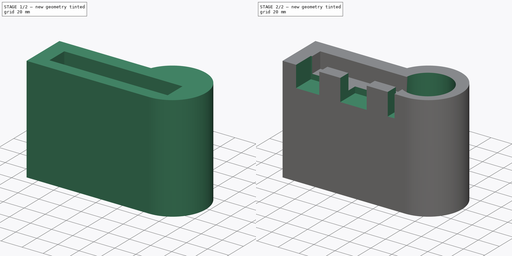
[diagram: build sequence overview — one tinted view per stage of 2, left to right]
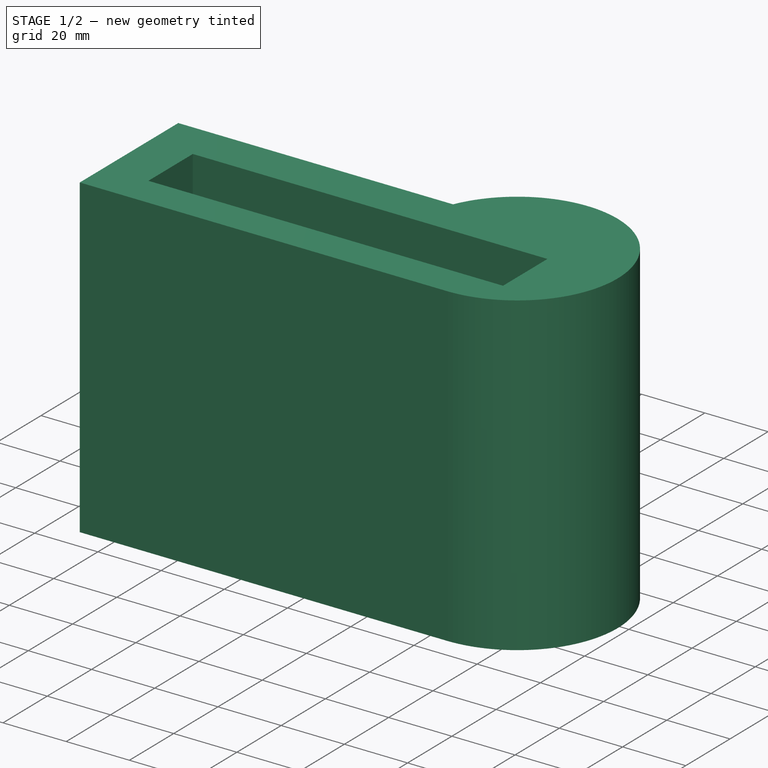
[diagram: stage 1 of 2 — iso view after this stage's code; geometry added in this stage tinted green]
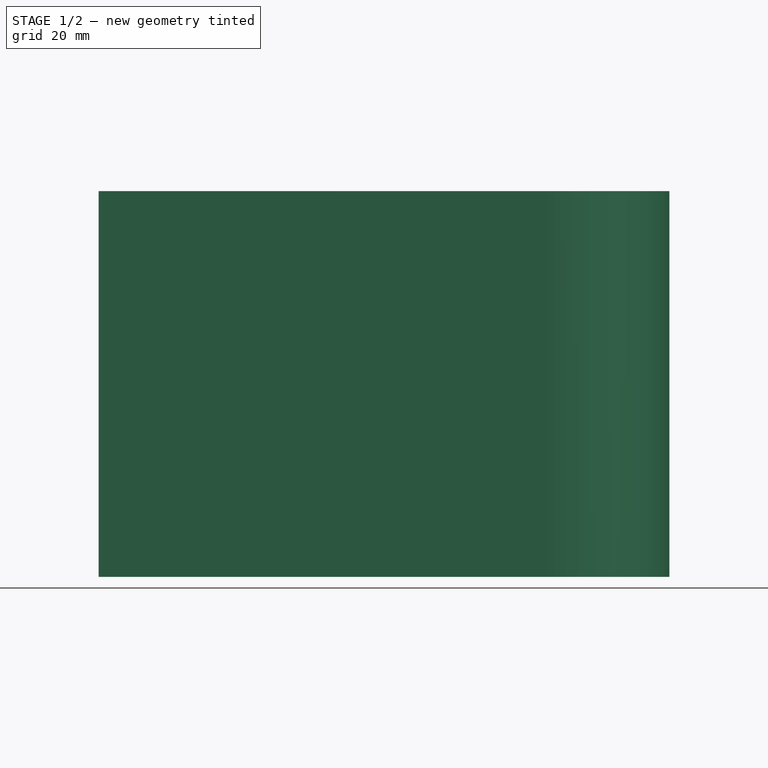
[diagram: stage 1 of 2 — front view after this stage's code; geometry added in this stage tinted green]
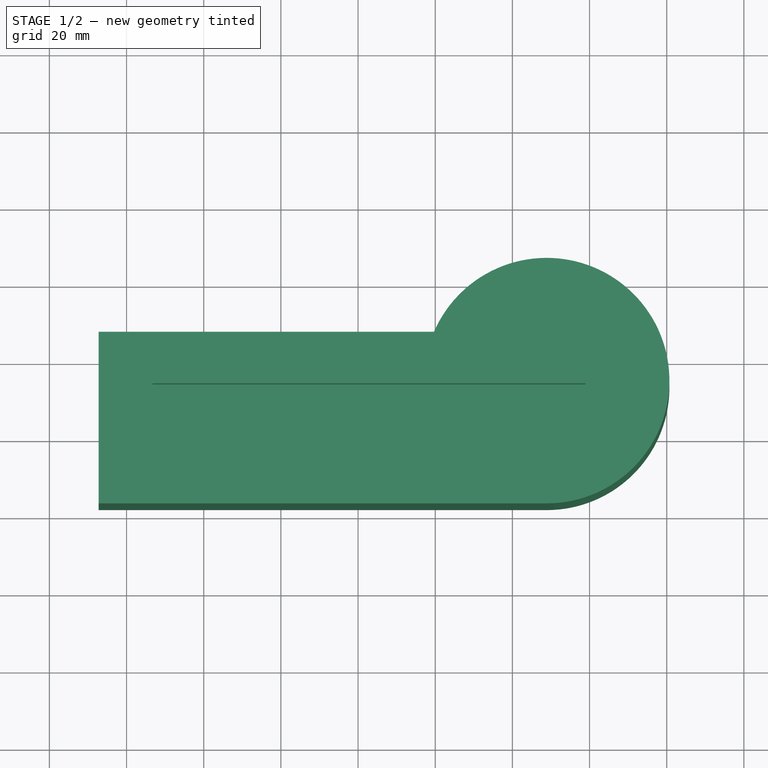
[diagram: stage 1 of 2 — top view after this stage's code; geometry added in this stage tinted green]
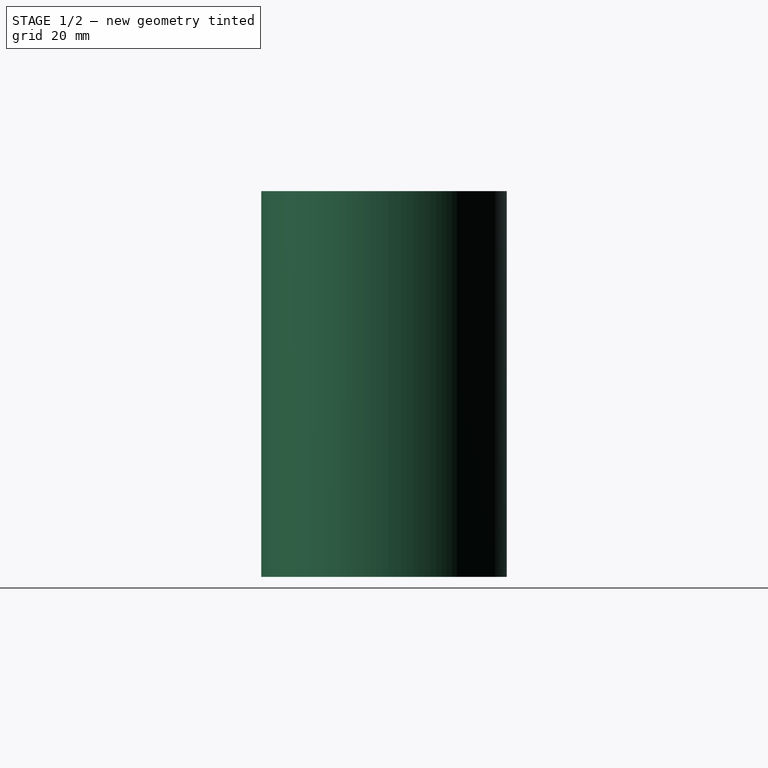
[diagram: stage 1 of 2 — right view after this stage's code; geometry added in this stage tinted green]
FCSTD DOCUMENT  (FreeCAD 0.19R17171 (Git))
Label: PartDesignExample
License: All rights reserved
LicenseURL: http://en.wikipedia.org/wiki/All_rights_reserved
objects: Sketcher::SketchObject×4, PartDesign::Pocket×3, PartDesign::Pad×1, PartDesign::Body×1
note: 13 computed .brp shape members not serialized (recipe doc carries the construction recipe); baked Part::Feature solids carry a one-line shape summary decoded from their .brp

FEATURE [Sketcher::SketchObject] Sketch
  MapMode = 5
  sketch-geometry (4):
    g0: LineSegment StartX=19.6877 StartY=26.6905 StartZ=0 EndX=-67.2479 EndY=26.6905 EndZ=0
    g1: LineSegment StartX=-67.2479 StartY=26.6905 StartZ=0 EndX=-67.2479 EndY=-17.8141 EndZ=0
    g2: LineSegment StartX=-67.2479 StartY=-17.8141 StartZ=0 EndX=49.1537 EndY=-17.8141 EndZ=0
    g3: ArcOfCircle CenterX=48.8715 CenterY=14.0058 CenterZ=0 NormalX=0 NormalY=0 NormalZ=1 AngleXU=0 Radius=31.8212 StartAngle=4.72126 EndAngle=9.01476
  constraints (8):
    c: Horizontal(g0)
    c: Coincident(g0,g1)
    c: Vertical(g1)
    c: Coincident(g1,g2)
    c: Horizontal(g2)
    c: Coincident(g3,g0)
    c: Coincident(g3,g2)
    c: Tangent(g3,g2)
FEATURE [PartDesign::Pad] Pad
  Length = 100
  Length2 = 100
  Profile = -> Sketch
  Refine = true
  Type = 0
FEATURE [Sketcher::SketchObject] Sketch001
  MapMode = 5
  Placement = pos=(0,0,100) rot=(0,0,1;0rad)
  Support = -> [Pad]
  sketch-geometry (4):
    g0: LineSegment StartX=-53.2753 StartY=13.2959 StartZ=0 EndX=58.9324 EndY=13.2959 EndZ=0
    g1: LineSegment StartX=58.9324 StartY=13.2959 StartZ=0 EndX=58.9324 EndY=-6.77268 EndZ=0
    g2: LineSegment StartX=58.9324 StartY=-6.77269 StartZ=0 EndX=-53.2753 EndY=-6.77269 EndZ=0
    g3: LineSegment StartX=-53.2753 StartY=-6.77269 StartZ=0 EndX=-53.2753 EndY=13.2959 EndZ=0
  constraints (8):
    c: Coincident(g0,g1)
    c: Coincident(g1,g2)
    c: Coincident(g2,g3)
    c: Coincident(g3,g0)
    c: Horizontal(g0)
    c: Horizontal(g2)
    c: Vertical(g1)
    c: Vertical(g3)
FEATURE [PartDesign::Pocket] Pocket
  Length = 15
  Length2 = 100
  Profile = -> Sketch001
  Refine = true
  Type = 0
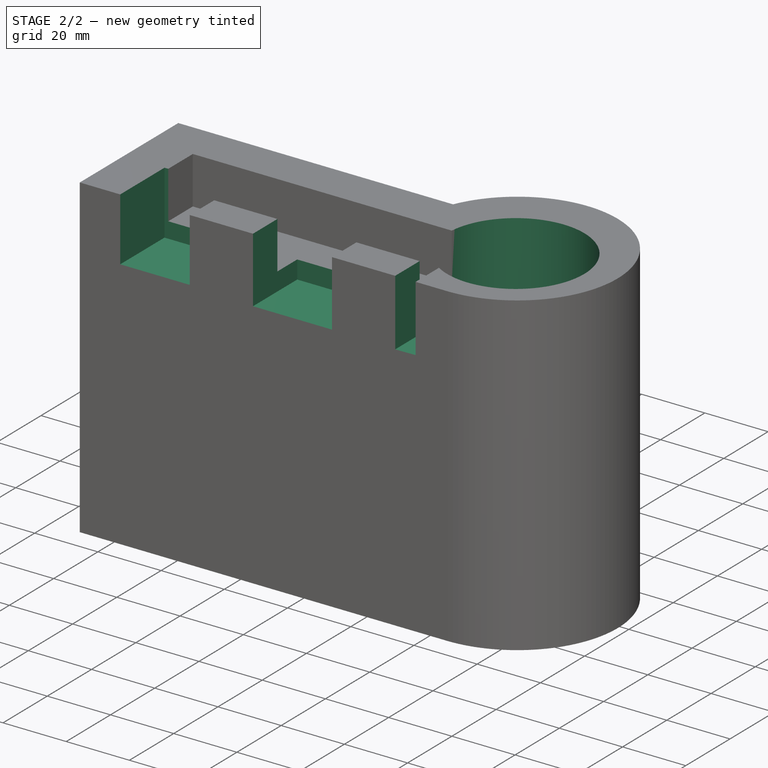
[diagram: stage 2 of 2 — iso view after this stage's code; geometry added in this stage tinted green]
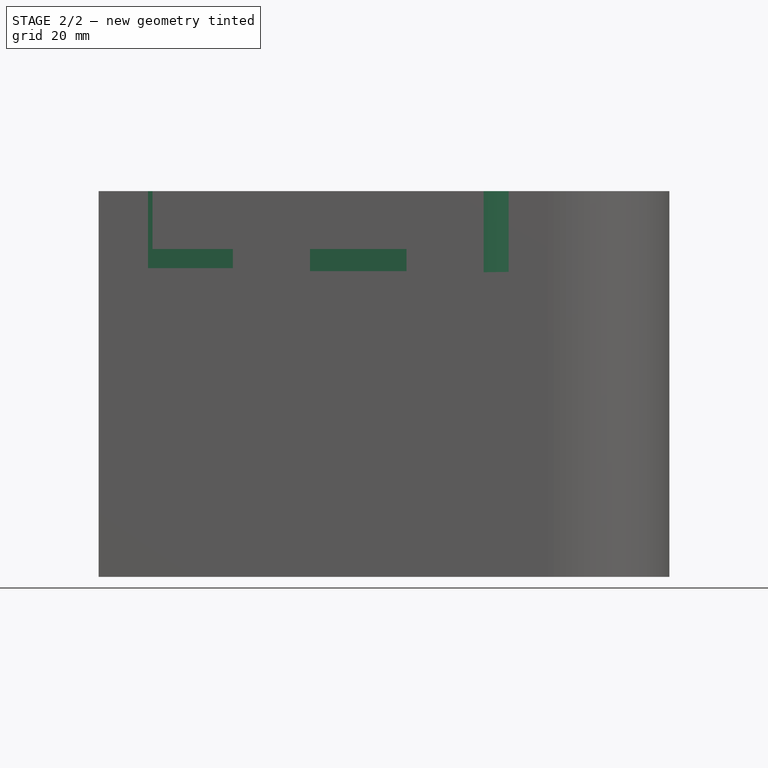
[diagram: stage 2 of 2 — front view after this stage's code; geometry added in this stage tinted green]
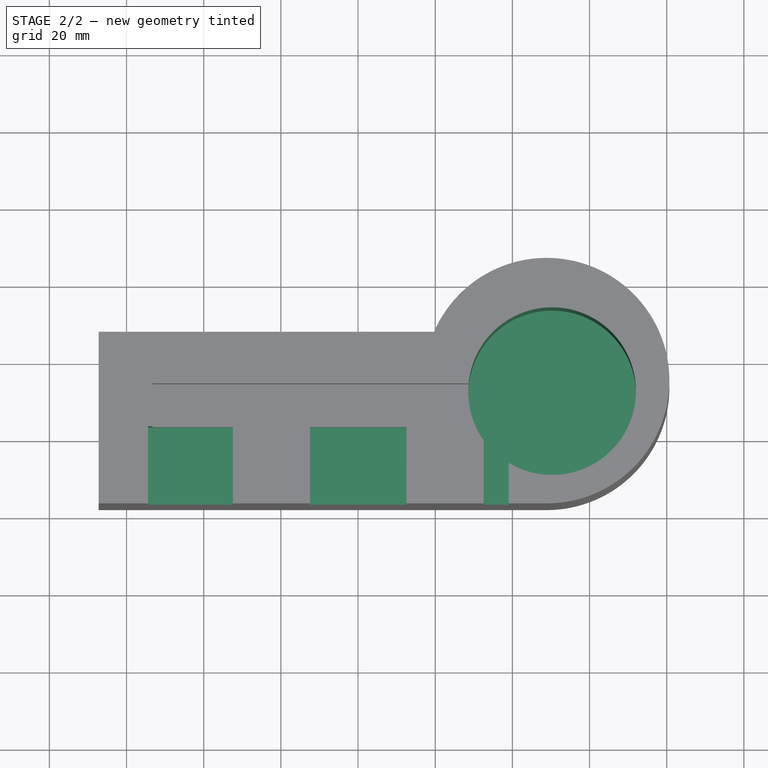
[diagram: stage 2 of 2 — top view after this stage's code; geometry added in this stage tinted green]
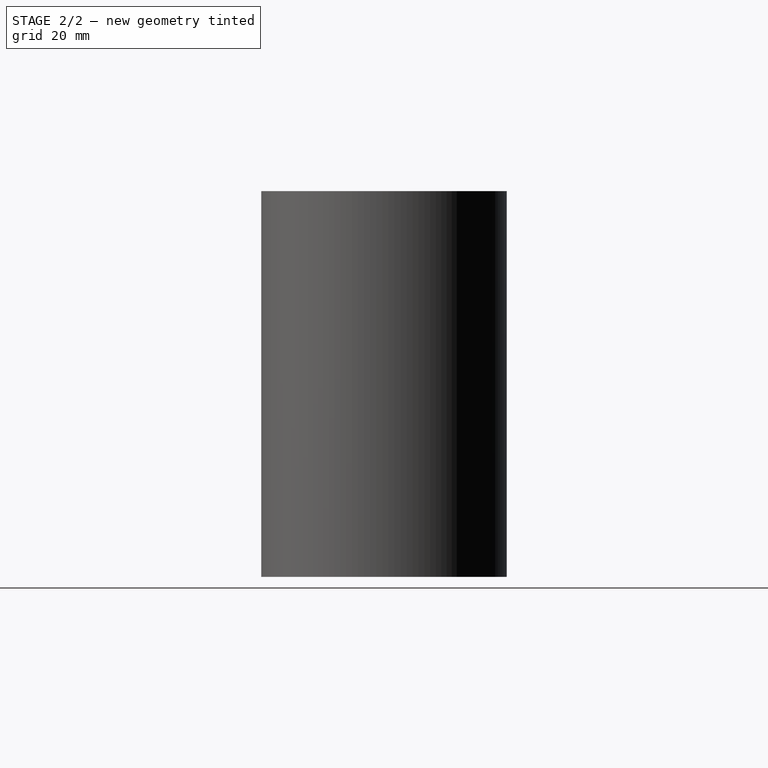
[diagram: stage 2 of 2 — right view after this stage's code; geometry added in this stage tinted green]
FEATURE [Sketcher::SketchObject] Sketch002
  MapMode = 5
  Placement = pos=(2.1291e-12,-17.8141,0) rot=(1,0,0;1.5708rad)
  Support = -> [Pocket]
  sketch-geometry (13):
    g0: LineSegment StartX=-54.4567 StartY=105.889 StartZ=0 EndX=-54.4567 EndY=80.0188 EndZ=0
    g1: LineSegment StartX=-54.4567 StartY=80.0188 StartZ=0 EndX=-32.4567 EndY=80.0188 EndZ=0
    g2: LineSegment StartX=-32.4567 StartY=80.0188 StartZ=0 EndX=-32.4567 EndY=107.255 EndZ=0
    g3: LineSegment StartX=-32.4567 StartY=107.255 StartZ=0 EndX=-12.4567 EndY=107.255 EndZ=0
    g4: LineSegment StartX=-12.4567 StartY=107.255 StartZ=0 EndX=-12.4567 EndY=79.2624 EndZ=0
    g5: LineSegment StartX=-12.4567 StartY=79.2624 StartZ=0 EndX=12.5433 EndY=79.2624 EndZ=0
    g6: LineSegment StartX=12.5433 StartY=79.2624 StartZ=0 EndX=12.5433 EndY=107.865 EndZ=0
    g7: LineSegment StartX=12.5433 StartY=107.865 StartZ=0 EndX=32.5433 EndY=107.865 EndZ=0
    g8: LineSegment StartX=32.5433 StartY=107.865 StartZ=0 EndX=32.5433 EndY=78.9681 EndZ=0
    g9: LineSegment StartX=32.5433 StartY=78.9681 StartZ=0 EndX=39.0065 EndY=79.0528 EndZ=0
    g10: LineSegment StartX=39.0065 StartY=79.0528 StartZ=0 EndX=39.0065 EndY=126.156 EndZ=0
    g11: LineSegment StartX=39.0065 StartY=126.156 StartZ=0 EndX=-30.7503 EndY=126.156 EndZ=0
    g12: LineSegment StartX=-30.7503 StartY=126.156 StartZ=0 EndX=-54.4567 EndY=105.889 EndZ=0
  constraints (25):
    c: Vertical(g0)
    c: Coincident(g0,g1)
    c: Horizontal(g1)
    c: Coincident(g1,g2)
    c: Vertical(g2)
    c: Coincident(g2,g3)
    c: Horizontal(g3)
    c: Coincident(g3,g4)
    c: Vertical(g4)
    c: Coincident(g4,g5)
    c: Horizontal(g5)
    c: Coincident(g5,g6)
    c: Vertical(g6)
    c: Coincident(g6,g7)
    c: Horizontal(g7)
    c: Coincident(g7,g8)
    c: Vertical(g8)
    c: Coincident(g8,g9)
    c: Horizontal(g9)
    c: Coincident(g9,g10)
    c: Vertical(g10)
    c: Coincident(g10,g11)
    c: Horizontal(g11)
    c: Coincident(g11,g12)
    c: Coincident(g12,g0)
FEATURE [PartDesign::Pocket] Pocket001
  Length = 20
  Length2 = 100
  Profile = -> Sketch002
  Refine = true
  Type = 0
FEATURE [Sketcher::SketchObject] Sketch003
  MapMode = 5
  Placement = pos=(0,0,100) rot=(0,0,1;0rad)
  Support = -> [Pocket001]
  sketch-geometry (1):
    g0: Circle CenterX=50.2915 CenterY=11.2881 CenterZ=0 NormalX=0 NormalY=0 NormalZ=1 AngleXU=0 Radius=21.7223
FEATURE [PartDesign::Pocket] Pocket002
  Length = 50
  Length2 = 100
  Profile = -> Sketch003
  Refine = true
  Type = 0
FEATURE [PartDesign::Body] Body
  Group = -> [Sketch,Pad,Sketch001,Pocket,Sketch002,Pocket001,Sketch003,Pocket002]
  Origin = -> Origin
  Tip = -> Pocket002
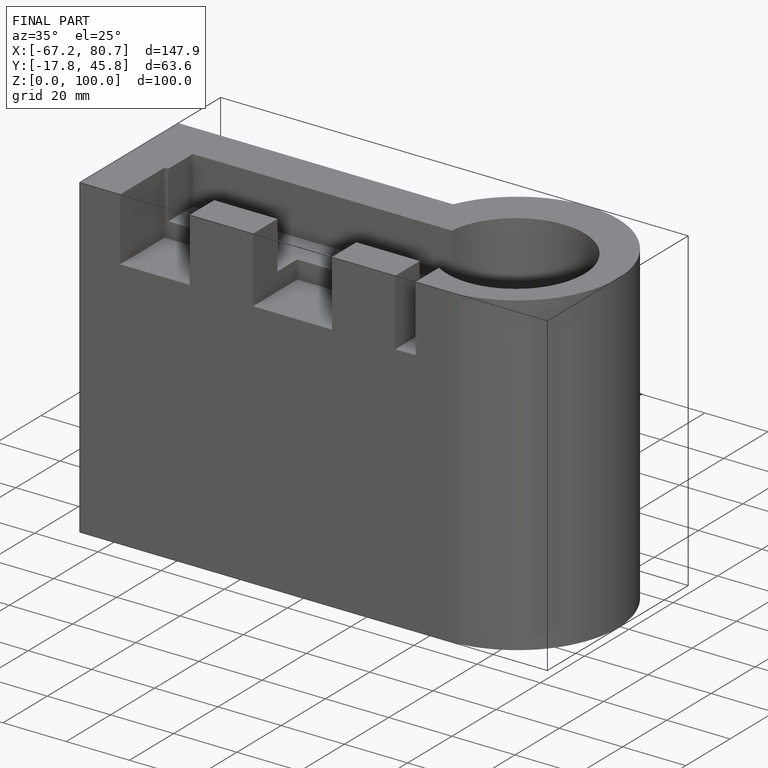
[diagram: finished part — iso view with bounding-box wireframe]
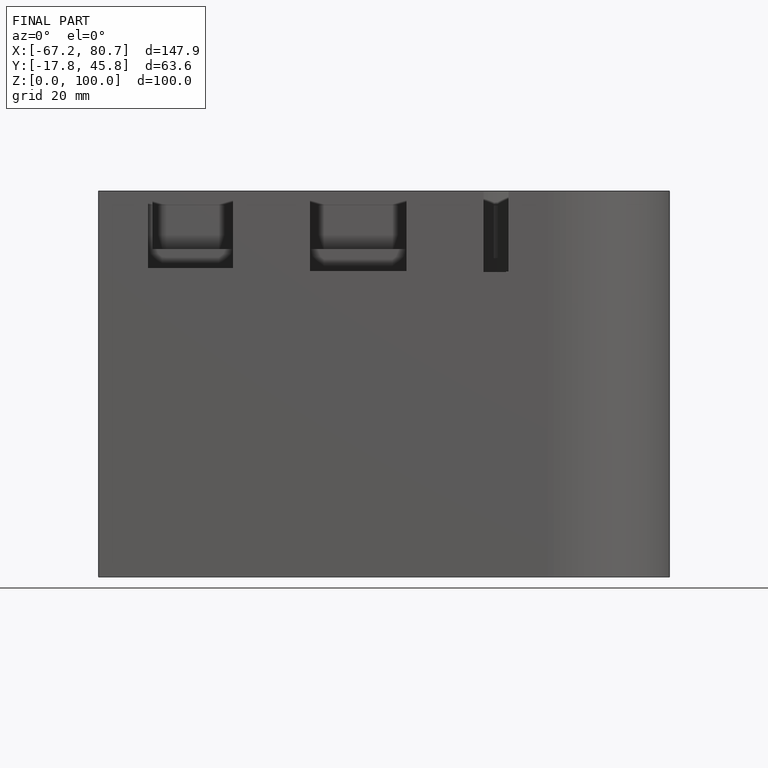
[diagram: finished part — front view with bounding-box wireframe]
